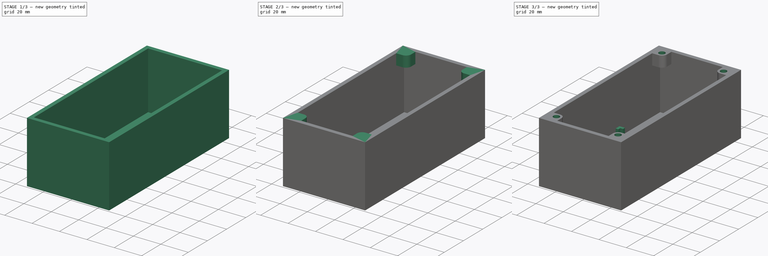
[diagram: build sequence overview — one tinted view per stage of 3, left to right]
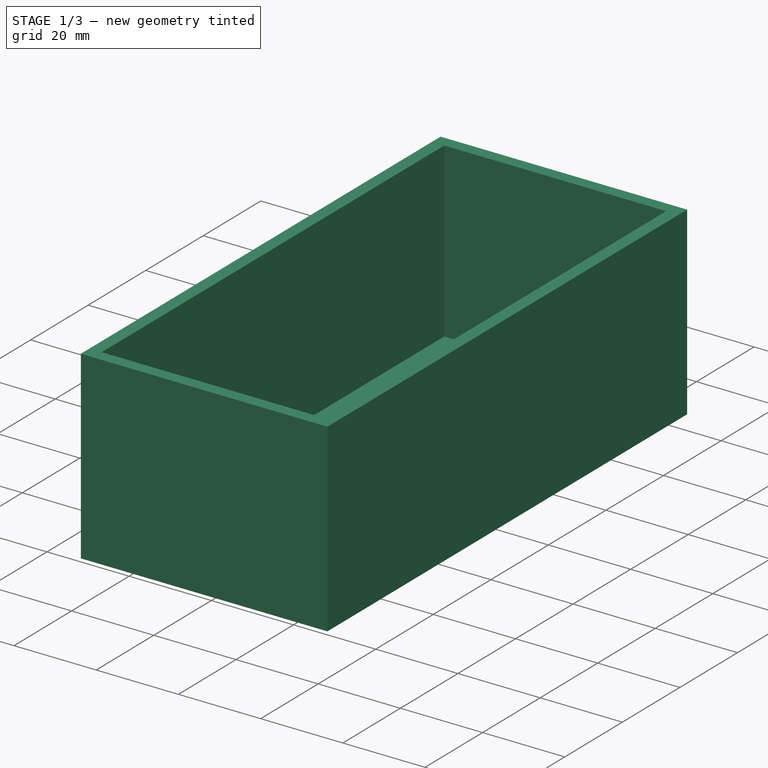
[diagram: stage 1 of 3 — iso view after this stage's code; geometry added in this stage tinted green]
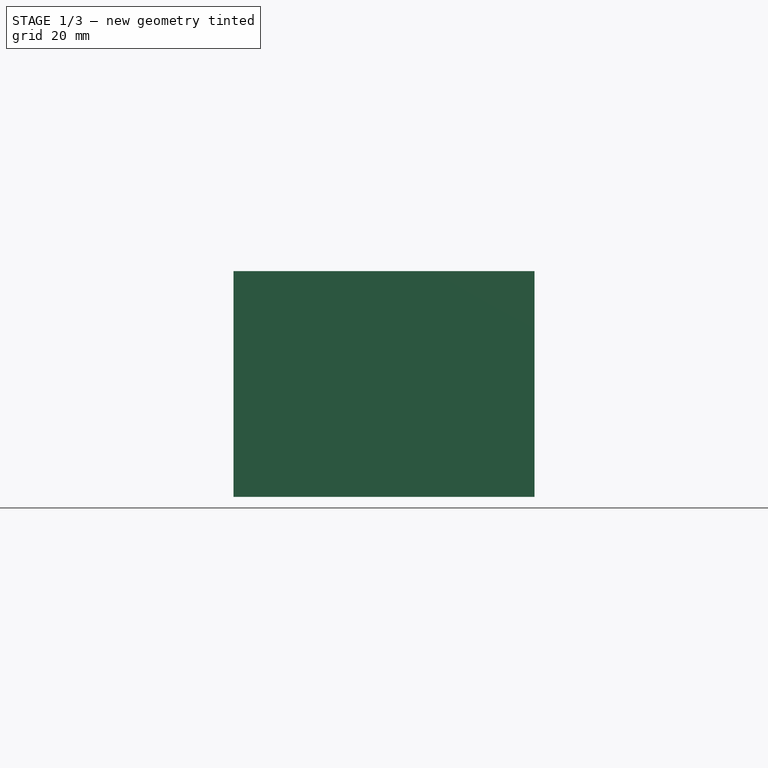
[diagram: stage 1 of 3 — front view after this stage's code; geometry added in this stage tinted green]
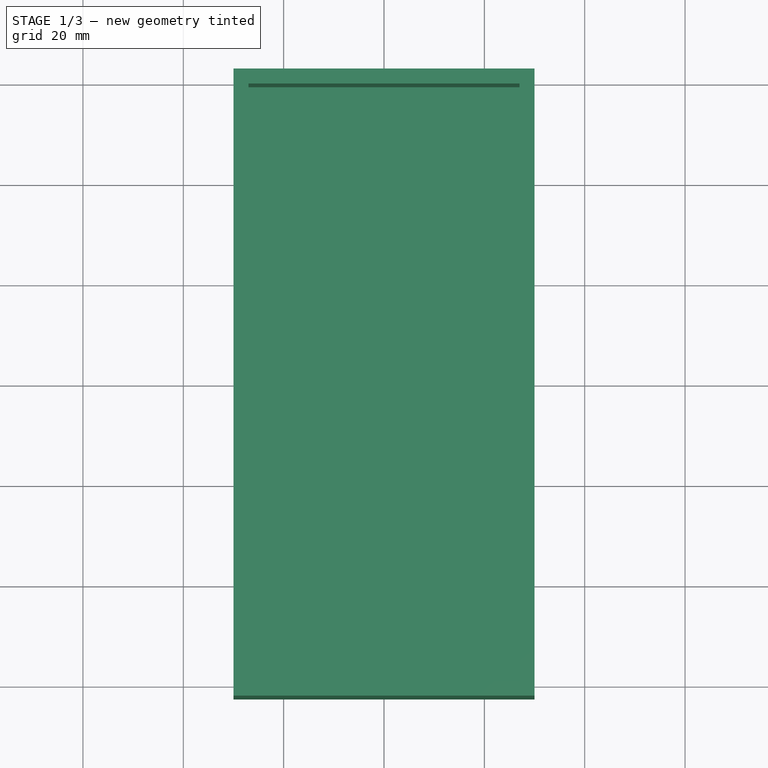
[diagram: stage 1 of 3 — top view after this stage's code; geometry added in this stage tinted green]
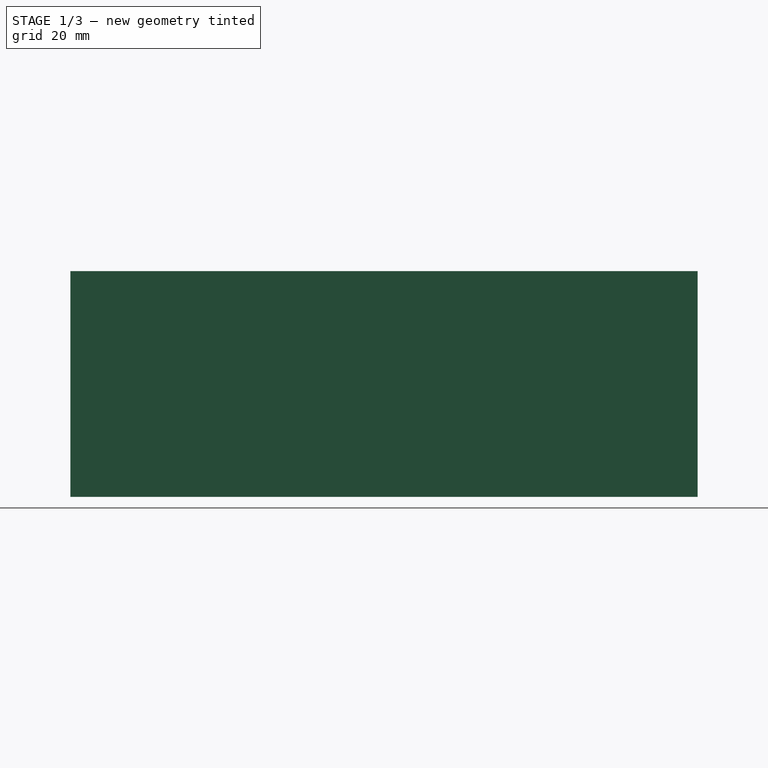
[diagram: stage 1 of 3 — right view after this stage's code; geometry added in this stage tinted green]
FCSTD DOCUMENT  (FreeCAD 0.19R24267 (Git))
Label: single_dot_dislay_box
License: All rights reserved
LicenseURL: http://en.wikipedia.org/wiki/All_rights_reserved
objects: Sketcher::SketchObject×5, PartDesign::Pad×3, PartDesign::Pocket×2, PartDesign::CoordinateSystem×1, PartDesign::Body×1
note: 17 computed .brp shape members not serialized (recipe doc carries the construction recipe); baked Part::Feature solids carry a one-line shape summary decoded from their .brp

FEATURE [Sketcher::SketchObject] Sketch
  FullyConstrained = true
  MapMode = 5
  Support = -> [XY_Plane]
  sketch-geometry (4):
    g0: LineSegment StartX=-30 StartY=62.5 StartZ=0 EndX=30 EndY=62.5 EndZ=0
    g1: LineSegment StartX=30 StartY=62.5 StartZ=0 EndX=30 EndY=-62.5 EndZ=0
    g2: LineSegment StartX=30 StartY=-62.5 StartZ=0 EndX=-30 EndY=-62.5 EndZ=0
    g3: LineSegment StartX=-30 StartY=-62.5 StartZ=0 EndX=-30 EndY=62.5 EndZ=0
  constraints (12):
    c: Coincident(g0,g1)
    c: Coincident(g1,g2)
    c: Coincident(g2,g3)
    c: Coincident(g3,g0)
    c: Horizontal(g0)
    c: Horizontal(g2)
    c: Vertical(g1)
    c: Vertical(g3)
    c: Distance(g0) = 60
    c: Distance(g3) = 125
    c: DistanceX(g-2,g0) = 30
    c: DistanceY(g-1,g0) = 62.5
FEATURE [PartDesign::Pad] Pad
  Direction = (1,1,1)
  Length = 45
  Length2 = 100
  Profile = -> Sketch
  Refine = true
  Type = 0
FEATURE [Sketcher::SketchObject] Sketch001
  ExternalGeometry = -> [Pad]
  FullyConstrained = true
  MapMode = 5
  Placement = pos=(0,0,45) rot=(0,0,1;0rad)
  Support = -> [Pad]
  sketch-geometry (4):
    g0: LineSegment StartX=-27 StartY=59.5 StartZ=0 EndX=27 EndY=59.5 EndZ=0
    g1: LineSegment StartX=27 StartY=59.5 StartZ=0 EndX=27 EndY=-59.5 EndZ=0
    g2: LineSegment StartX=27 StartY=-59.5 StartZ=0 EndX=-27 EndY=-59.5 EndZ=0
    g3: LineSegment StartX=-27 StartY=-59.5 StartZ=0 EndX=-27 EndY=59.5 EndZ=0
  constraints (12):
    c: Coincident(g0,g1)
    c: Coincident(g1,g2)
    c: Coincident(g2,g3)
    c: Coincident(g3,g0)
    c: Horizontal(g0)
    c: Horizontal(g2)
    c: Vertical(g1)
    c: Vertical(g3)
    c: DistanceX(g0,g-5) = -3
    c: DistanceY(g0,g-5) = 3
    c: DistanceX(g1,g-4) = 3
    c: DistanceY(g1,g-4) = -3
FEATURE [PartDesign::Pocket] Pocket
  BaseFeature = -> Pad
  Length = 42
  Length2 = 100
  Profile = -> Sketch001
  Refine = true
  Type = 0
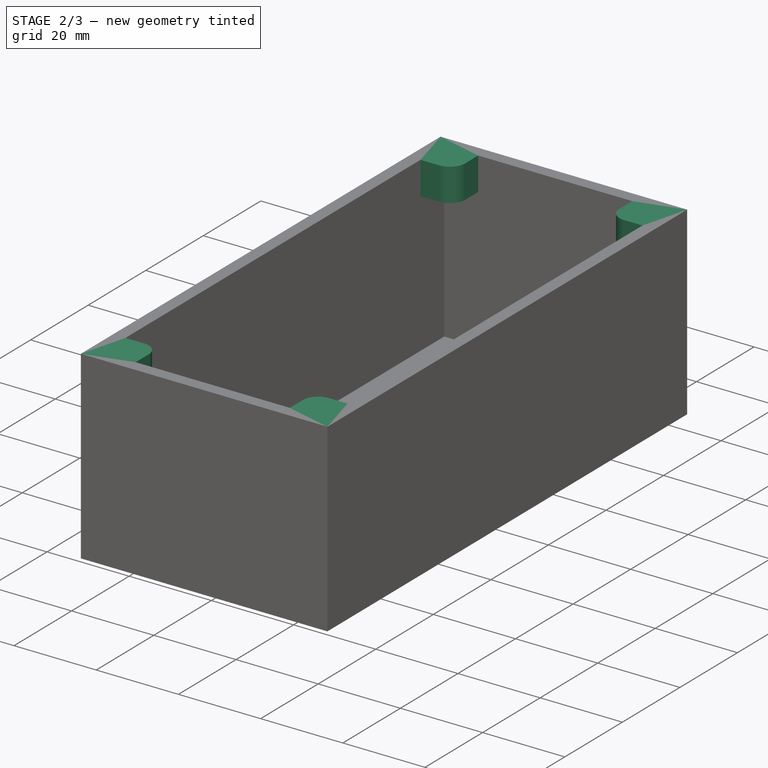
[diagram: stage 2 of 3 — iso view after this stage's code; geometry added in this stage tinted green]
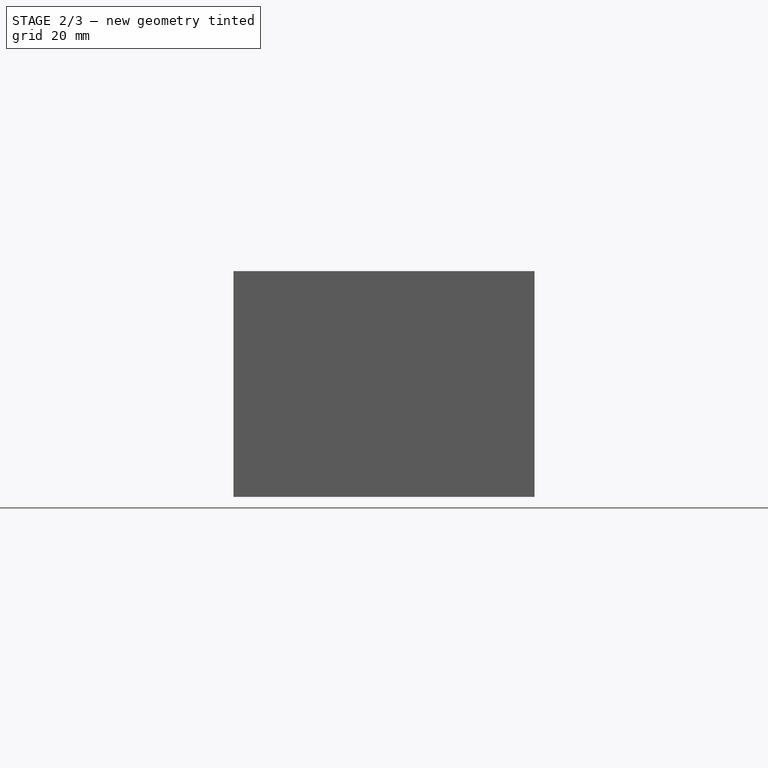
[diagram: stage 2 of 3 — front view after this stage's code; geometry added in this stage tinted green]
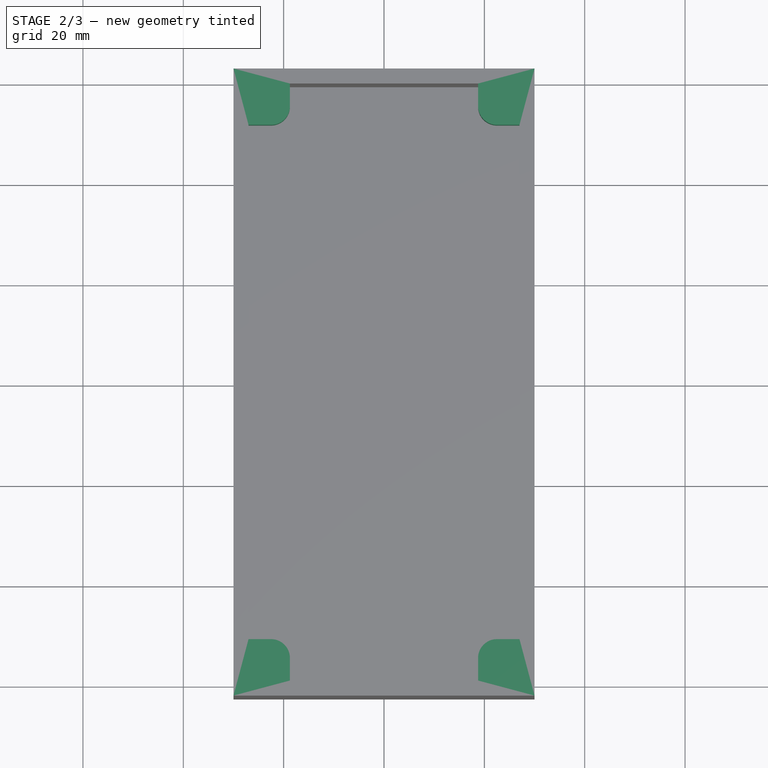
[diagram: stage 2 of 3 — top view after this stage's code; geometry added in this stage tinted green]
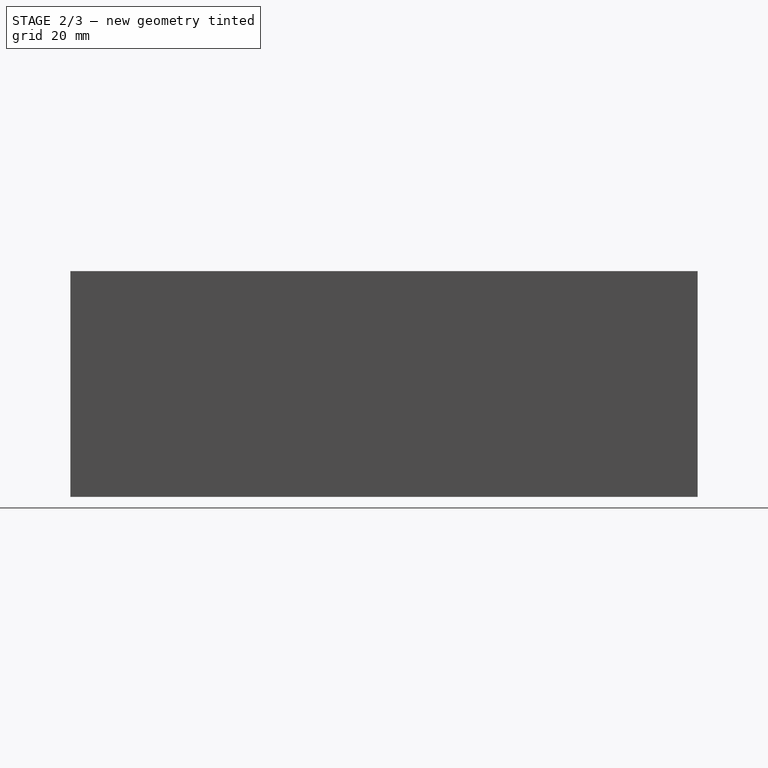
[diagram: stage 2 of 3 — right view after this stage's code; geometry added in this stage tinted green]
FEATURE [Sketcher::SketchObject] Sketch002
  ExternalGeometry = -> [Pocket]
  FullyConstrained = false
  MapMode = 5
  Placement = pos=(0,0,45) rot=(0,0,1;0rad)
  Support = -> [Pocket]
  sketch-geometry (23):
    g0: LineSegment StartX=30 StartY=-62.5 StartZ=0 EndX=30 EndY=-55 EndZ=0
    g1: LineSegment StartX=30 StartY=-55 StartZ=0 EndX=22.5 EndY=-55 EndZ=0
    g2: Circle CenterX=22.5 CenterY=-55 CenterZ=0 NormalX=0 NormalY=0 NormalZ=1 AngleXU=0 Radius=2.25
    g3: ArcOfCircle CenterX=22.5 CenterY=-55 CenterZ=0 NormalX=0 NormalY=0 NormalZ=1 AngleXU=0 Radius=3.75 StartAngle=1.5708 EndAngle=3.14159
    g4: LineSegment StartX=18.75 StartY=-60.4455 StartZ=0 EndX=18.75 EndY=-55 EndZ=0
    g5: LineSegment StartX=27.7509 StartY=-51.25 StartZ=0 EndX=22.5 EndY=-51.25 EndZ=0
    g6: LineSegment StartX=27.7509 StartY=-51.25 StartZ=0 EndX=27 EndY=-59.5 EndZ=0
    g7: LineSegment StartX=18.75 StartY=-60.4455 StartZ=0 EndX=27 EndY=-59.5 EndZ=0
    g8: LineSegment StartX=-18.75 StartY=-60.4455 StartZ=0 EndX=-27 EndY=-59.5 EndZ=0
    g9: LineSegment StartX=-18.75 StartY=-60.4455 StartZ=0 EndX=-18.75 EndY=-55 EndZ=0
    g10: ArcOfCircle CenterX=-22.5 CenterY=-55 CenterZ=0 NormalX=0 NormalY=0 NormalZ=1 AngleXU=0 Radius=3.75 StartAngle=0 EndAngle=1.5708
    g11: LineSegment StartX=-27.7509 StartY=-51.25 StartZ=0 EndX=-22.5 EndY=-51.25 EndZ=0
    g12: LineSegment StartX=-27.7509 StartY=-51.25 StartZ=0 EndX=-27 EndY=-59.5 EndZ=0
    g13: LineSegment StartX=-18.75 StartY=60.4455 StartZ=0 EndX=-27 EndY=59.5 EndZ=0
    g14: LineSegment StartX=-27.7509 StartY=51.25 StartZ=0 EndX=-27 EndY=59.5 EndZ=0
    g15: LineSegment StartX=-27.7509 StartY=51.25 StartZ=0 EndX=-22.5 EndY=51.25 EndZ=0
    g16: ArcOfCircle CenterX=-22.5 CenterY=55 CenterZ=0 NormalX=0 NormalY=0 NormalZ=1 AngleXU=0 Radius=3.75 StartAngle=4.71239 EndAngle=6.28319
    g17: LineSegment StartX=-18.75 StartY=60.4455 StartZ=0 EndX=-18.75 EndY=55 EndZ=0
    g18: LineSegment StartX=18.75 StartY=60.4455 StartZ=0 EndX=18.75 EndY=55 EndZ=0
    g19: LineSegment StartX=18.75 StartY=60.4455 StartZ=0 EndX=27 EndY=59.5 EndZ=0
    g20: ArcOfCircle CenterX=22.5 CenterY=55 CenterZ=0 NormalX=0 NormalY=0 NormalZ=1 AngleXU=0 Radius=3.75 StartAngle=3.14159 EndAngle=4.71239
    g21: LineSegment StartX=27.7509 StartY=51.25 StartZ=0 EndX=22.5 EndY=51.25 EndZ=0
    g22: LineSegment StartX=27.7509 StartY=51.25 StartZ=0 EndX=27 EndY=59.5 EndZ=0
  constraints (42):
    c: Coincident(g0,g-4)
    c: PointOnObject(g0,g-4)
    c: Coincident(g1,g0)
    c: Horizontal(g1)
    c: Distance(g1) = 7.5
    c: Equal(g0,g1)
    c: Coincident(g2,g1)
    c: Radius(g2) = 2.25
    c: Coincident(g3,g1)
    c: Radius(g3) = 3.75
    c: Vertical(g4)
    c: Horizontal(g5)
    c: Tangent(g3,g4) = 1.5708
    c: Tangent(g3,g5) = -1.5708
    c: Coincident(g6,g5)
    c: Coincident(g6,g-6)
    c: Coincident(g7,g4)
    c: Coincident(g7,g6)
    c: Radius(g10) = 3.75
    c: Vertical(g9)
    c: Horizontal(g11)
    c: Tangent(g10,g9) = -1.5708
    c: Tangent(g10,g11) = 1.5708
    c: Coincident(g12,g11)
    c: Coincident(g8,g9)
    c: Coincident(g8,g12)
    c: Radius(g20) = 3.75
    c: Vertical(g18)
    c: Horizontal(g21)
    c: Tangent(g20,g18) = -1.5708
    c: Tangent(g20,g21) = 1.5708
    c: Coincident(g22,g21)
    c: Coincident(g19,g18)
    c: Coincident(g19,g22)
    c: Radius(g16) = 3.75
    c: Vertical(g17)
    c: Horizontal(g15)
    c: Tangent(g16,g17) = 1.5708
    c: Tangent(g16,g15) = -1.5708
    c: Coincident(g14,g15)
    c: Coincident(g13,g17)
    c: Coincident(g13,g14)
FEATURE [PartDesign::Pad] Pad001
  BaseFeature = -> Pocket
  Direction = (1,1,1)
  Length = 8
  Length2 = 100
  Profile = -> Sketch002
  Refine = true
  Reversed = true
  Type = 0
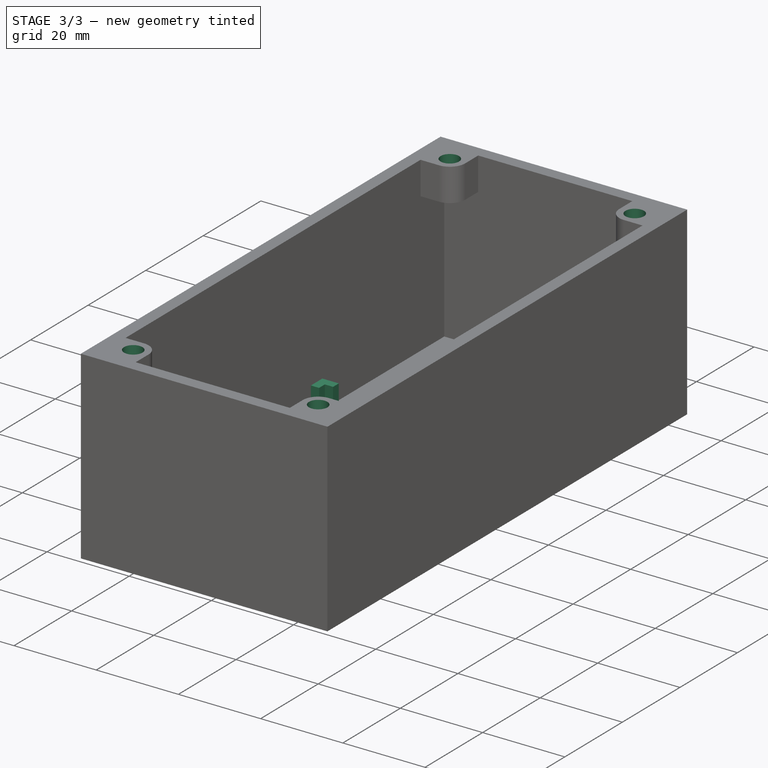
[diagram: stage 3 of 3 — iso view after this stage's code; geometry added in this stage tinted green]
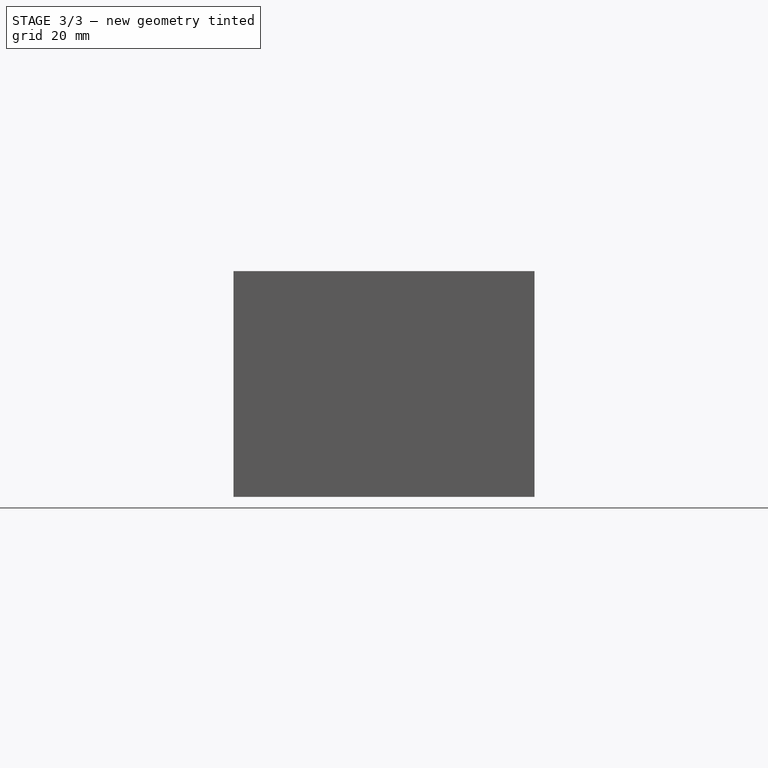
[diagram: stage 3 of 3 — front view after this stage's code; geometry added in this stage tinted green]
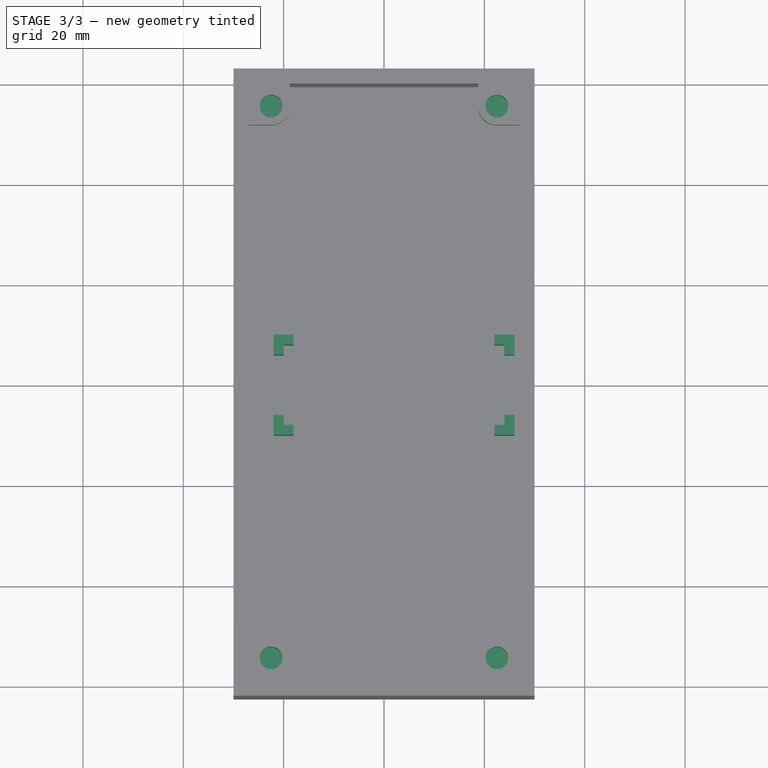
[diagram: stage 3 of 3 — top view after this stage's code; geometry added in this stage tinted green]
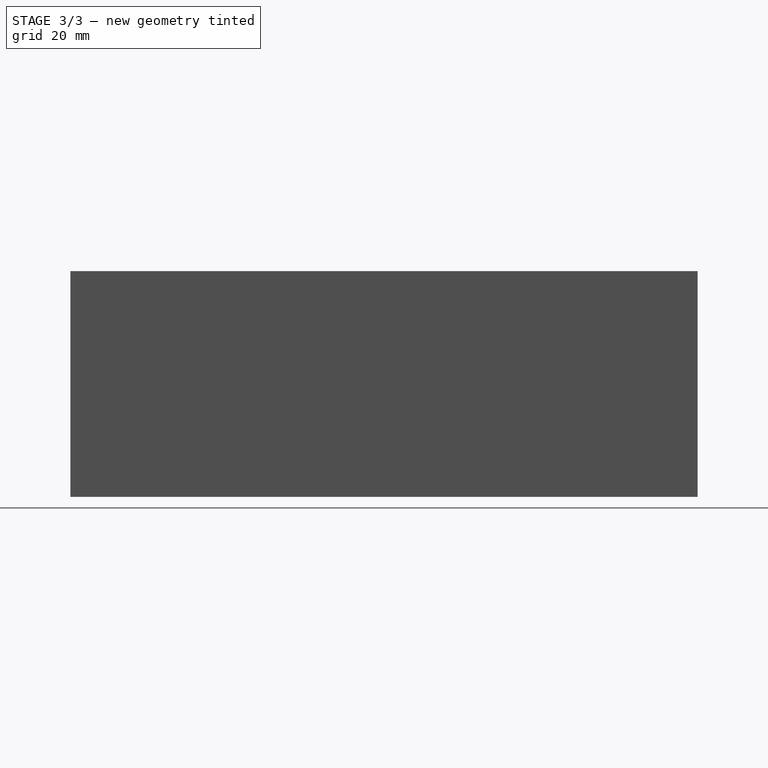
[diagram: stage 3 of 3 — right view after this stage's code; geometry added in this stage tinted green]
FEATURE [Sketcher::SketchObject] Sketch003
  ExternalGeometry = -> [Pad001]
  FullyConstrained = false
  MapMode = 5
  Placement = pos=(0,0,45) rot=(0,0,1;0rad)
  Support = -> [Pad001]
  sketch-geometry (4):
    g0: Circle CenterX=22.5 CenterY=55 CenterZ=0 NormalX=0 NormalY=0 NormalZ=1 AngleXU=0 Radius=2.25
    g1: Circle CenterX=-22.5 CenterY=55 CenterZ=0 NormalX=0 NormalY=0 NormalZ=1 AngleXU=0 Radius=2.25
    g2: Circle CenterX=22.5 CenterY=-55 CenterZ=0 NormalX=0 NormalY=0 NormalZ=1 AngleXU=0 Radius=2.25
    g3: Circle CenterX=-22.5 CenterY=-55 CenterZ=0 NormalX=0 NormalY=0 NormalZ=1 AngleXU=0 Radius=2.25
  constraints (5):
    c: Coincident(g0,g-3)
    c: Radius(g0) = 2.25
    c: Radius(g1) = 2.25
    c: Radius(g2) = 2.25
    c: Radius(g3) = 2.25
FEATURE [PartDesign::Pocket] Pocket001
  BaseFeature = -> Pad001
  Length = 7
  Length2 = 100
  Profile = -> Sketch003
  Refine = true
  Type = 0
FEATURE [PartDesign::CoordinateSystem] Local_CS  label="fastener"
  AttacherType = Attacher::AttachEngine3D
  MapMode = 11
  Placement = pos=(22.5,-55,45) rot=(0,0,1;1.5708rad)
  Support = -> [Pocket001]
FEATURE [Sketcher::SketchObject] Sketch004
  FullyConstrained = false
  MapMode = 5
  Placement = pos=(0,0,3) rot=(0,0,1;0rad)
  Support = -> [Pocket001]
  sketch-geometry (34):
    g0: LineSegment StartX=-20 StartY=8 StartZ=0 EndX=24 EndY=8 EndZ=0
    g1: LineSegment StartX=24 StartY=8 StartZ=0 EndX=24 EndY=-8 EndZ=0
    g2: LineSegment StartX=24 StartY=-8 StartZ=0 EndX=-20 EndY=-8 EndZ=0
    g3: LineSegment StartX=-20 StartY=-8 StartZ=0 EndX=-20 EndY=8 EndZ=0
    g4: LineSegment StartX=-18 StartY=8 StartZ=0 EndX=-18 EndY=10 EndZ=0
    g5: LineSegment StartX=-18 StartY=10 StartZ=0 EndX=-22 EndY=10 EndZ=0
    g6: LineSegment StartX=-22 StartY=10 StartZ=0 EndX=-22 EndY=6 EndZ=0
    g7: LineSegment StartX=-22 StartY=6 StartZ=0 EndX=-20 EndY=6 EndZ=0
    g8: Circle CenterX=-20 CenterY=8 CenterZ=0 NormalX=0 NormalY=0 NormalZ=1 AngleXU=0 Radius=2.82843
    g9: LineSegment StartX=-20 StartY=6 StartZ=0 EndX=-20 EndY=8 EndZ=0
    g10: LineSegment StartX=-18 StartY=8 StartZ=0 EndX=-20 EndY=8 EndZ=0
    g11: LineSegment StartX=-18 StartY=-8 StartZ=0 EndX=-18 EndY=-10 EndZ=0
    g12: LineSegment StartX=-18 StartY=-10 StartZ=0 EndX=-22 EndY=-10 EndZ=0
    g13: LineSegment StartX=-22 StartY=-10 StartZ=0 EndX=-22 EndY=-6 EndZ=0
    g14: LineSegment StartX=-22 StartY=-6 StartZ=0 EndX=-20 EndY=-6 EndZ=0
    g15: Circle CenterX=-20 CenterY=-8 CenterZ=0 NormalX=0 NormalY=0 NormalZ=1 AngleXU=0 Radius=2.82843
    g16: LineSegment StartX=-20 StartY=-6 StartZ=0 EndX=-20 EndY=-8 EndZ=0
    g17: LineSegment StartX=-18 StartY=-8 StartZ=0 EndX=-20 EndY=-8 EndZ=0
    g18: LineSegment StartX=0 StartY=0 StartZ=0 EndX=2 EndY=0 EndZ=0
    g19: LineSegment StartX=2 StartY=0 StartZ=0 EndX=2 EndY=-2.88853 EndZ=0
    g20: LineSegment StartX=22 StartY=8 StartZ=0 EndX=22 EndY=10 EndZ=0
    g21: LineSegment StartX=22 StartY=10 StartZ=0 EndX=26 EndY=10 EndZ=0
    g22: LineSegment StartX=26 StartY=10 StartZ=0 EndX=26 EndY=6 EndZ=0
    g23: LineSegment StartX=26 StartY=6 StartZ=0 EndX=24 EndY=6 EndZ=0
    g24: Circle CenterX=24 CenterY=8 CenterZ=0 NormalX=0 NormalY=0 NormalZ=1 AngleXU=0 Radius=2.82843
    g25: LineSegment StartX=24 StartY=6 StartZ=0 EndX=24 EndY=8 EndZ=0
    g26: LineSegment StartX=22 StartY=8 StartZ=0 EndX=24 EndY=8 EndZ=0
    g27: LineSegment StartX=22 StartY=-8 StartZ=0 EndX=22 EndY=-10 EndZ=0
    g28: LineSegment StartX=22 StartY=-10 StartZ=0 EndX=26 EndY=-10 EndZ=0
    g29: LineSegment StartX=26 StartY=-10 StartZ=0 EndX=26 EndY=-6 EndZ=0
    g30: LineSegment StartX=26 StartY=-6 StartZ=0 EndX=24 EndY=-6 EndZ=0
    g31: Circle CenterX=24 CenterY=-8 CenterZ=0 NormalX=0 NormalY=0 NormalZ=1 AngleXU=0 Radius=2.82843
    g32: LineSegment StartX=24 StartY=-6 StartZ=0 EndX=24 EndY=-8 EndZ=0
    g33: LineSegment StartX=22 StartY=-8 StartZ=0 EndX=24 EndY=-8 EndZ=0
  constraints (61):
    c: Coincident(g0,g1)
    c: Coincident(g1,g2)
    c: Coincident(g2,g3)
    c: Coincident(g3,g0)
    c: Horizontal(g0)
    c: Horizontal(g2)
    c: Vertical(g1)
    c: Vertical(g3)
    c: Distance(g0) = 44
    c: Distance(g3) = 16
    c: DistanceX(g0) = 24
    c: DistanceY(g0) = 8
    c: Coincident(g4,g5)
    c: Coincident(g5,g6)
    c: Coincident(g6,g7)
    c: PointOnObject(g4,g8)
    c: PointOnObject(g5,g8)
    c: PointOnObject(g6,g8)
    c: Coincident(g8,g0)
    c: Horizontal(g7)
    c: PointOnObject(g4,g0)
    c: PointOnObject(g7,g3)
    c: Coincident(g9,g7)
    c: Coincident(g9,g0)
    c: Coincident(g10,g4)
    c: Coincident(g10,g9)
    c: Coincident(g11,g12)
    c: Coincident(g12,g13)
    c: Coincident(g13,g14)
    c: PointOnObject(g11,g15)
    c: PointOnObject(g12,g15)
    c: PointOnObject(g13,g15)
    c: Horizontal(g14)
    c: Coincident(g16,g14)
    c: Coincident(g17,g11)
    c: Coincident(g17,g16)
    c: Coincident(g18,g-1)
    c: PointOnObject(g18,g-1)
    c: Distance(g18) = 2
    c: Coincident(g19,g18)
    c: Vertical(g19)
    c: Coincident(g20,g21)
    c: Coincident(g21,g22)
    c: Coincident(g22,g23)
    c: PointOnObject(g20,g24)
    c: PointOnObject(g21,g24)
    c: PointOnObject(g22,g24)
    c: Horizontal(g23)
    c: Coincident(g25,g23)
    c: Coincident(g26,g20)
    c: Coincident(g26,g25)
    c: Coincident(g27,g28)
    c: Coincident(g28,g29)
    c: Coincident(g29,g30)
    c: PointOnObject(g27,g31)
    c: PointOnObject(g28,g31)
    c: PointOnObject(g29,g31)
    c: Horizontal(g30)
    c: Coincident(g32,g30)
    c: Coincident(g33,g27)
    c: Coincident(g33,g32)
FEATURE [PartDesign::Pad] Pad002
  BaseFeature = -> Pocket001
  Direction = (1,1,1)
  Length = 11
  Length2 = 100
  Profile = -> Sketch004
  Refine = true
  Type = 0
FEATURE [PartDesign::Body] Body
  Group = -> [Sketch,Pad,Sketch001,Pocket,Sketch002,Pad001,Sketch003,Pocket001,Local_CS,Sketch004,Pad002]
  Origin = -> Origin
  Tip = -> Pad002
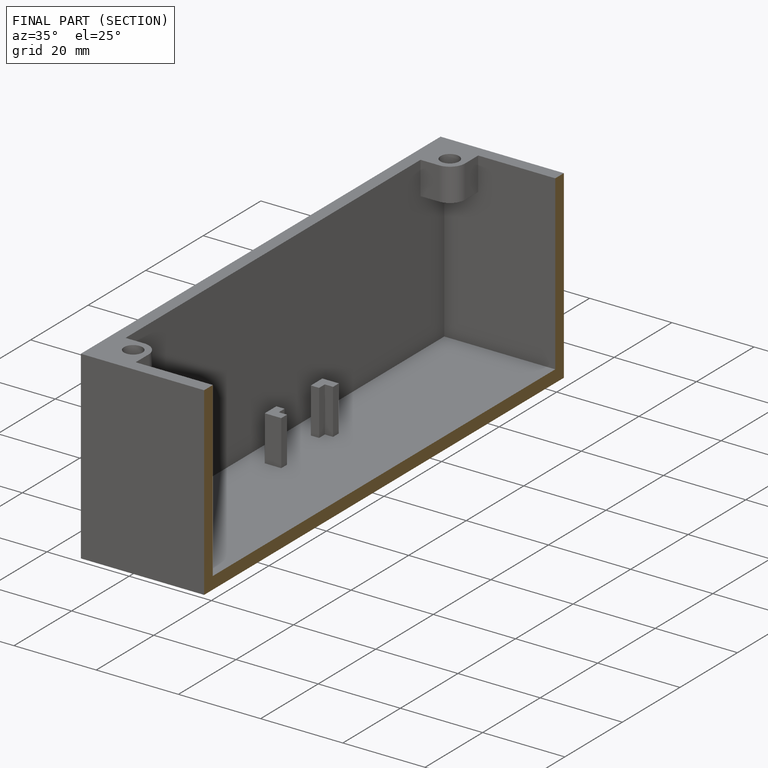
[diagram: finished part — half-section view (interior)]
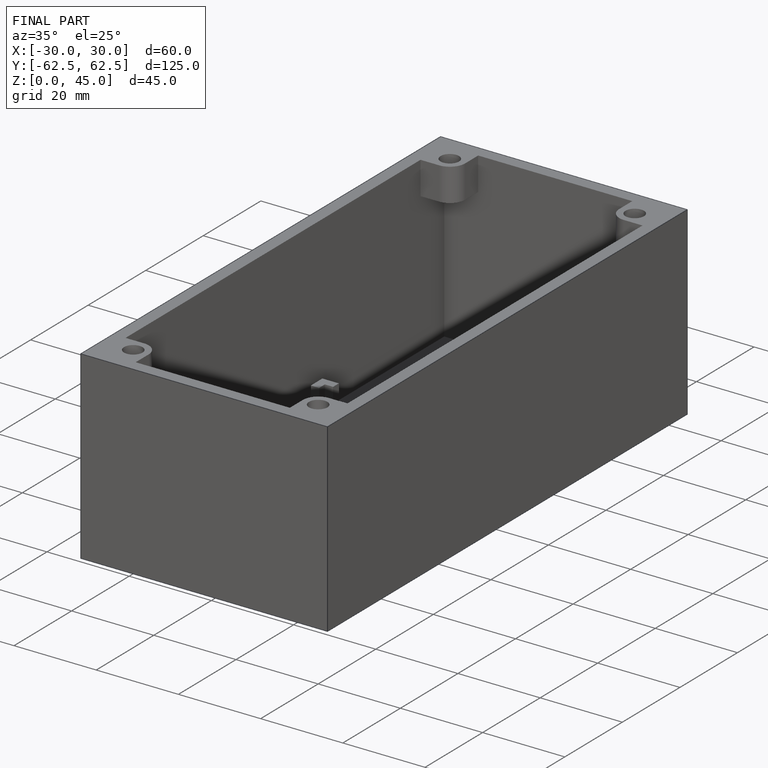
[diagram: finished part — iso view with bounding-box wireframe]
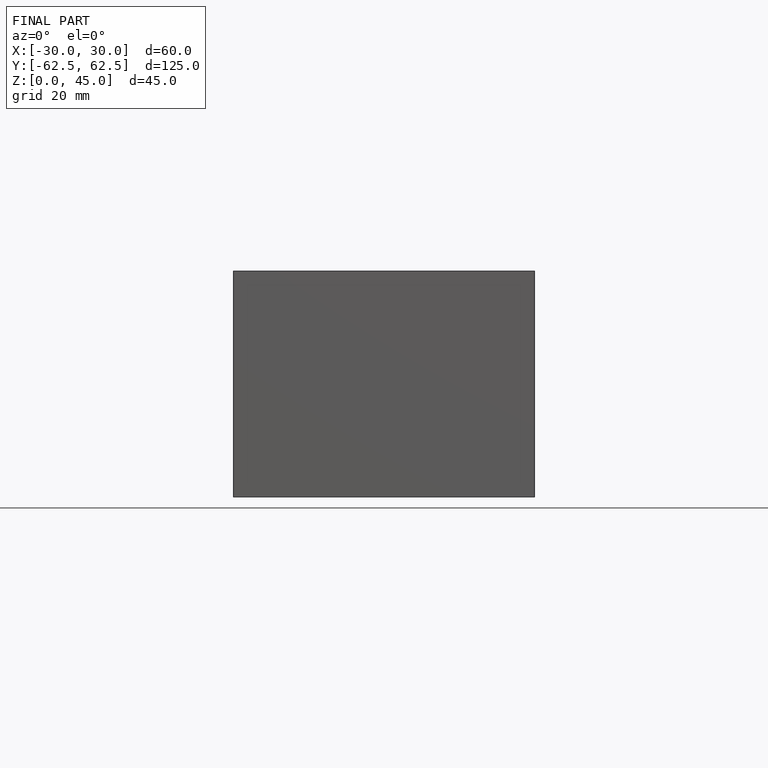
[diagram: finished part — front view with bounding-box wireframe]
